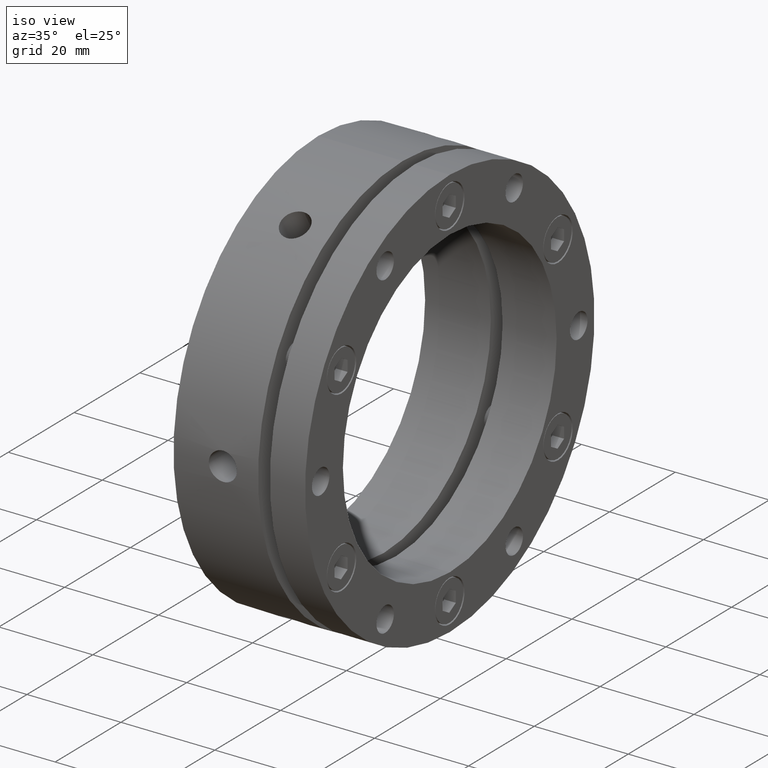
[diagram: clean part render]
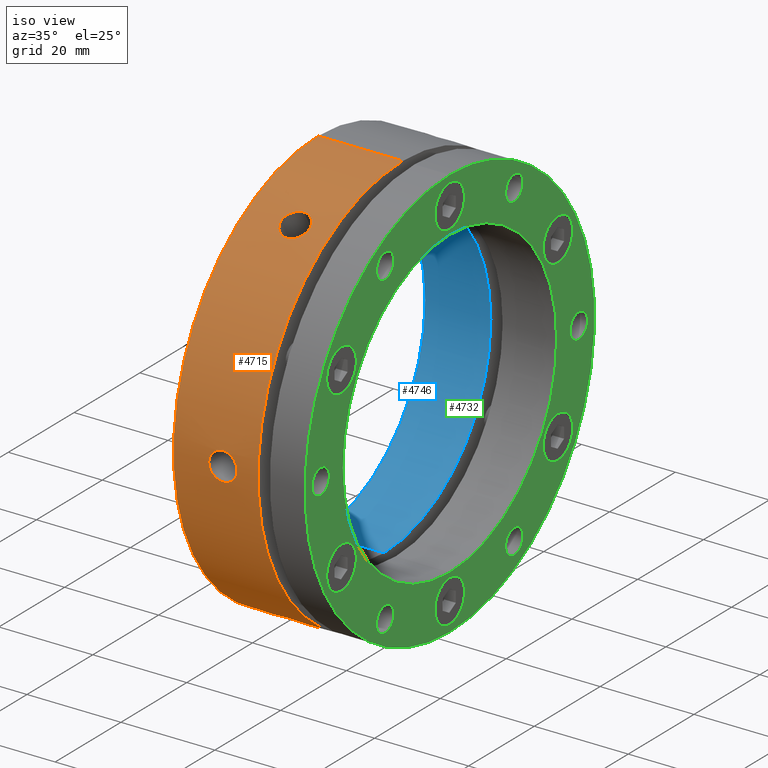
[diagram: same view with three faces highlighted in distinct colors, each labeled with its STEP entity id]
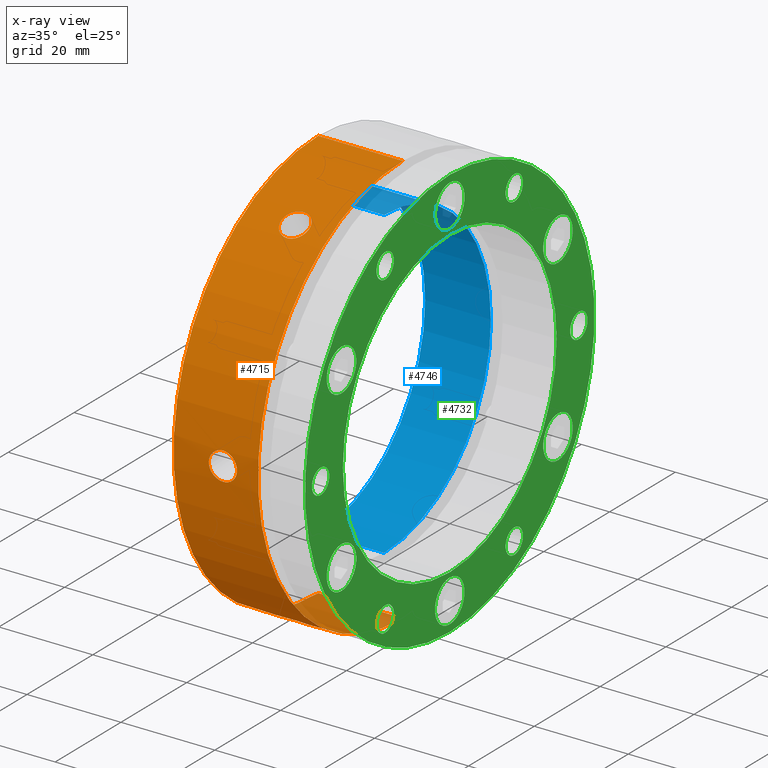
[diagram: x-ray of the same camera — body ghosted, the three highlighted faces saturated]
A machine part, iso view with three faces highlighted in distinct colors.
The next image is the same camera in x-ray (body ghosted, the three faces saturated) — at least one of them is partly hidden behind the body in this view.
Their STEP definitions:

[orange] entity #4715 — the highlighted cylindrical surface (partial cylindrical patch) has radius 44 mm, axis along (1, 0, 0).
#12 = CARTESIAN_POINT ( 'NONE',  ( 8.241765270477920100, -20.25900382798964800, 39.05882633052730300 ) ) ;
#13 = CARTESIAN_POINT ( 'NONE',  ( 8.518605668478109300, -20.01291649313067500, 39.18548613785174700 ) ) ;
#14 = CARTESIAN_POINT ( 'NONE',  ( 8.669661274635046800, -19.90215360396181400, 39.24176758601879600 ) ) ;
#15 = CARTESIAN_POINT ( 'NONE',  ( 8.997698449928226000, -19.70617450761658100, 39.34054813581234100 ) ) ;
#16 = CARTESIAN_POINT ( 'NONE',  ( 9.172241088617555600, -19.62275957601376300, 39.38213947928523600 ) ) ;
#17 = CARTESIAN_POINT ( 'NONE',  ( 9.533250649259940700, -19.48864777514099700, 39.44867819383064500 ) ) ;
#18 = CARTESIAN_POINT ( 'NONE',  ( 9.722386472922758900, -19.43693714134661800, 39.47413023464650900 ) ) ;
#19 = CARTESIAN_POINT ( 'NONE',  ( 10.10963134414471100, -19.36780511968019200, 39.50809547503627800 ) ) ;
#20 = CARTESIAN_POINT ( 'NONE',  ( 10.30430393243151800, -19.35072785629465700, 39.51644381054071400 ) ) ;
#21 = CARTESIAN_POINT ( 'NONE',  ( 10.49999999999999100, -19.35072785629465000, 39.51644381054071400 ) ) ;
#23 = DIRECTION ( 'NONE',  ( 1.000000000000000000, 0.0000000000000000000, 0.0000000000000000000 ) ) ;
#24 = CARTESIAN_POINT ( 'NONE',  ( 13.99999999999998800, 0.0000000000000000000, -44.00000000000000000 ) ) ;
#146 = CARTESIAN_POINT ( 'NONE',  ( 10.49999999999999100, -43.89760813529593300, -2.999999999999996900 ) ) ;
#159 = CARTESIAN_POINT ( 'NONE',  ( 10.49999999999999100, -24.54688027900128200, 36.51644381054072100 ) ) ;
#162 = CARTESIAN_POINT ( 'NONE',  ( 10.49999999999999100, -43.89760813529593300, 3.000000000000003100 ) ) ;
#178 = CARTESIAN_POINT ( 'NONE',  ( 10.49999999999999100, -19.35072785629465700, -39.51644381054072100 ) ) ;
#180 = CARTESIAN_POINT ( 'NONE',  ( -1.387778780781445700E-014, 5.388445916248353600E-015, 44.00000000000000000 ) ) ;
#181 = CARTESIAN_POINT ( 'NONE',  ( 10.49999999999999100, -19.35072785629465000, 39.51644381054071400 ) ) ;
#193 = CARTESIAN_POINT ( 'NONE',  ( 17.99999999999999300, 0.0000000000000000000, -44.00000000000000000 ) ) ;
#208 = CARTESIAN_POINT ( 'NONE',  ( -1.387778780781445700E-014, 0.0000000000000000000, -44.00000000000000000 ) ) ;
#215 = CARTESIAN_POINT ( 'NONE',  ( 10.49999999999999100, -24.54688027900128900, -36.51644381054072100 ) ) ;
#224 = CARTESIAN_POINT ( 'NONE',  ( 17.99999999999999300, 5.388445916248353600E-015, 44.00000000000000000 ) ) ;
#917 = CARTESIAN_POINT ( 'NONE',  ( 10.49999999999999100, -43.89760813529593300, 3.000000000000003100 ) ) ;
#918 = CARTESIAN_POINT ( 'NONE',  ( 17.99999999999999300, 0.0000000000000000000, 0.0000000000000000000 ) ) ;
#919 = DIRECTION ( 'NONE',  ( -1.000000000000000000, -0.0000000000000000000, -0.0000000000000000000 ) ) ;
#920 = DIRECTION ( 'NONE',  ( 0.0000000000000000000, 0.0000000000000000000, -1.000000000000000000 ) ) ;
#921 = CARTESIAN_POINT ( 'NONE',  ( 10.49999999999999100, -24.54688027900128900, -36.51644381054072100 ) ) ;
#922 = CARTESIAN_POINT ( 'NONE',  ( 10.69569606766441600, -24.54688027900129300, -36.51644381054070700 ) ) ;
#926 = CARTESIAN_POINT ( 'NONE',  ( 10.69569606766441800, -43.89760813529592600, 3.000000000000003100 ) ) ;
#927 = CARTESIAN_POINT ( 'NONE',  ( 10.89446792063006000, -24.53059367690323700, -36.52740686769526900 ) ) ;
#928 = CARTESIAN_POINT ( 'NONE',  ( 11.27917409489433700, -24.46671162549019100, -36.57022697297051600 ) ) ;
#929 = CARTESIAN_POINT ( 'NONE',  ( 11.46616220801009500, -24.41946861119954400, -36.60184735365913900 ) ) ;
#930 = CARTESIAN_POINT ( 'NONE',  ( 11.82934936234904400, -24.29397182231635500, -36.68526420854051700 ) ) ;
#931 = CARTESIAN_POINT ( 'NONE',  ( 12.00489986281481200, -24.21545574682701500, -36.73722278444835600 ) ) ;
#932 = CARTESIAN_POINT ( 'NONE',  ( 12.32982023942653900, -24.03349771181343900, -36.85651669212633400 ) ) ;
#933 = CARTESIAN_POINT ( 'NONE',  ( 12.48127881284401200, -23.92943182570235500, -36.92427309578756200 ) ) ;
#934 = CARTESIAN_POINT ( 'NONE',  ( 12.76132304751156000, -23.69366936277990700, -37.07599874960216400 ) ) ;
#935 = CARTESIAN_POINT ( 'NONE',  ( 12.88548133740307100, -23.56565242161002900, -37.15758936269588700 ) ) ;
#936 = CARTESIAN_POINT ( 'NONE',  ( 13.10264301832821900, -23.29047527537650800, -37.33068687755342600 ) ) ;
#937 = CARTESIAN_POINT ( 'NONE',  ( 13.19652586639104700, -23.14147931161435400, -37.42332134164033200 ) ) ;
#938 = CARTESIAN_POINT ( 'NONE',  ( 13.34701878578200500, -22.83147123179914600, -37.61325519495854100 ) ) ;
#939 = CARTESIAN_POINT ( 'NONE',  ( 13.40371633785312300, -22.67140192249565100, -37.71000520650560600 ) ) ;
#940 = CARTESIAN_POINT ( 'NONE',  ( 13.48039406310964900, -22.34101868219097800, -37.90667279052613000 ) ) ;
#941 = CARTESIAN_POINT ( 'NONE',  ( 13.50013823668368600, -22.16984045842354700, -38.00707121543884200 ) ) ;
#942 = CARTESIAN_POINT ( 'NONE',  ( 13.49986028854353200, -21.82651628484760700, -38.20526763673662900 ) ) ;
#943 = CARTESIAN_POINT ( 'NONE',  ( 13.48027260550921000, -21.65706259385068600, -38.30154561790860900 ) ) ;
#944 = CARTESIAN_POINT ( 'NONE',  ( 13.40378595821206900, -21.32246440611741900, -38.48882004640511700 ) ) ;
#945 = CARTESIAN_POINT ( 'NONE',  ( 13.34595197924581500, -21.15556195639233300, -38.58076184140694000 ) ) ;
#946 = CARTESIAN_POINT ( 'NONE',  ( 13.19513955927875600, -20.83634413796280100, -38.75409331823541900 ) ) ;
#947 = CARTESIAN_POINT ( 'NONE',  ( 13.10289034952953300, -20.68439058495692300, -38.83532642887190200 ) ) ;
#948 = CARTESIAN_POINT ( 'NONE',  ( 12.88499108210650900, -20.39596349800179800, -38.98757835126809100 ) ) ;
#949 = CARTESIAN_POINT ( 'NONE',  ( 12.75823284561367600, -20.25900194254587200, -39.05882730747435300 ) ) ;
#950 = CARTESIAN_POINT ( 'NONE',  ( 12.48139252829930100, -20.01291510103455100, -39.18548684783647200 ) ) ;
#951 = CARTESIAN_POINT ( 'NONE',  ( 12.33033699211587100, -19.90215243050545300, -39.24176818054445400 ) ) ;
#952 = CARTESIAN_POINT ( 'NONE',  ( 12.00230000657042400, -19.70617372344685600, -39.34054852800095100 ) ) ;
#953 = CARTESIAN_POINT ( 'NONE',  ( 11.82775754138803300, -19.62275898520577400, -39.38213977335754400 ) ) ;
#954 = CARTESIAN_POINT ( 'NONE',  ( 11.46674831666134300, -19.48864747285803700, -39.44867834285970100 ) ) ;
#955 = CARTESIAN_POINT ( 'NONE',  ( 11.27761266983701000, -19.43693694870408400, -39.47413032941874200 ) ) ;
#956 = CARTESIAN_POINT ( 'NONE',  ( 10.89036822370457200, -19.36780508213724500, -39.50809549335646400 ) ) ;
#957 = CARTESIAN_POINT ( 'NONE',  ( 10.69569585036848700, -19.35072785629466100, -39.51644381054071400 ) ) ;
#958 = CARTESIAN_POINT ( 'NONE',  ( 10.49999999999999100, -19.35072785629465700, -39.51644381054072100 ) ) ;
#959 = CARTESIAN_POINT ( 'NONE',  ( 10.69569606766441600, -19.35072785629465400, 39.51644381054072900 ) ) ;
#960 = CARTESIAN_POINT ( 'NONE',  ( 10.49999999999999100, -19.35072785629465000, 39.51644381054071400 ) ) ;
#961 = CARTESIAN_POINT ( 'NONE',  ( 10.89446792063005800, -43.89895912024589800, 2.980413860264485400 ) ) ;
#962 = CARTESIAN_POINT ( 'NONE',  ( 11.27917409489433400, -43.90410139350044700, 2.903680328257301400 ) ) ;
#963 = CARTESIAN_POINT ( 'NONE',  ( 11.46616220801008600, -43.90786393930881100, 2.846956487385941400 ) ) ;
#964 = CARTESIAN_POINT ( 'NONE',  ( 11.82934936234903700, -43.91735666029826700, 2.696564652679040600 ) ) ;
#965 = CARTESIAN_POINT ( 'NONE',  ( 12.00489986281480800, -43.92309606923426900, 2.602588448745886100 ) ) ;
#966 = CARTESIAN_POINT ( 'NONE',  ( 12.32982023942653300, -43.93542860629330700, 2.385361214162449200 ) ) ;
#967 = CARTESIAN_POINT ( 'NONE',  ( 12.48127881284401000, -43.94207443007746900, 2.261359311292297400 ) ) ;
#968 = CARTESIAN_POINT ( 'NONE',  ( 12.76132304751155500, -43.95559146922550300, 1.981320202235368200 ) ) ;
#969 = CARTESIAN_POINT ( 'NONE',  ( 12.88548133740306200, -43.96224254229007000, 1.829658972520620500 ) ) ;
#970 = CARTESIAN_POINT ( 'NONE',  ( 13.10264301832821600, -43.97456081437192700, 1.504799815912710300 ) ) ;
#971 = CARTESIAN_POINT ( 'NONE',  ( 13.19652586639104500, -43.98028663165605000, 1.329448294189896600 ) ) ;
#972 = CARTESIAN_POINT ( 'NONE',  ( 13.34701878578200200, -43.98977013376067200, 0.9660064950323881100 ) ) ;
#973 = CARTESIAN_POINT ( 'NONE',  ( 13.40371633785312300, -43.99352344692514500, 0.7790074010357930200 ) ) ;
#974 = CARTESIAN_POINT ( 'NONE',  ( 13.48039406310964800, -43.99865095063547200, 0.3945533299370778700 ) ) ;
#975 = CARTESIAN_POINT ( 'NONE',  ( 13.50013823668368400, -44.00000942522611800, 0.1961094271234160600 ) ) ;
#976 = CARTESIAN_POINT ( 'NONE',  ( 13.49986028854353400, -43.99999047422120700, -0.2003162395755351300 ) ) ;
#977 = CARTESIAN_POINT ( 'NONE',  ( 13.48027260550920800, -43.99864280624273500, -0.3952064313298995800 ) ) ;
#978 = CARTESIAN_POINT ( 'NONE',  ( 13.40378595821207200, -43.99352812493329900, -0.7786141762153879800 ) ) ;
#979 = CARTESIAN_POINT ( 'NONE',  ( 13.34595197924581100, -43.98970083021185200, -0.9691268351320843100 ) ) ;
#980 = CARTESIAN_POINT ( 'NONE',  ( 13.19513955927875200, -43.98020138320603700, -1.332243313646957100 ) ) ;
#981 = CARTESIAN_POINT ( 'NONE',  ( 13.10289034952953500, -43.97457454414273300, -1.504455506063588700 ) ) ;
#982 = CARTESIAN_POINT ( 'NONE',  ( 12.88499108210651100, -43.96221503323530300, -1.830366651704368200 ) ) ;
#983 = CARTESIAN_POINT ( 'NONE',  ( 12.75823284561367600, -43.95543766157509000, -1.984603316174164300 ) ) ;
#984 = CARTESIAN_POINT ( 'NONE',  ( 12.48139252829930400, -43.94208462040466400, -2.261050542641104900 ) ) ;
#985 = CARTESIAN_POINT ( 'NONE',  ( 12.33033699211587500, -43.93544434902408100, -2.385114495464300900 ) ) ;
#986 = CARTESIAN_POINT ( 'NONE',  ( 12.00230000657042800, -43.92300128578676100, -2.604227208106121500 ) ) ;
#987 = CARTESIAN_POINT ( 'NONE',  ( 11.82775754138803100, -43.91731299172004600, -2.697262113151216700 ) ) ;
#988 = CARTESIAN_POINT ( 'NONE',  ( 11.46674831666134700, -43.90788132706651900, -2.846675374535392300 ) ) ;
#989 = CARTESIAN_POINT ( 'NONE',  ( 11.27761266983701200, -43.90406813192647200, -2.904183995375238400 ) ) ;
#990 = CARTESIAN_POINT ( 'NONE',  ( 10.89036822370457000, -43.89891689345682800, -2.981036530002018300 ) ) ;
#991 = CARTESIAN_POINT ( 'NONE',  ( 10.69569585036849300, -43.89760813529594700, -2.999999999999997800 ) ) ;
#992 = CARTESIAN_POINT ( 'NONE',  ( 10.49999999999999100, -43.89760813529593300, -2.999999999999996900 ) ) ;
#995 = CARTESIAN_POINT ( 'NONE',  ( 10.89446792063006200, -19.36836544334266500, 39.50782072795976100 ) ) ;
#996 = CARTESIAN_POINT ( 'NONE',  ( 11.27917409489433900, -19.43738976801026700, 39.47390730122781100 ) ) ;
#997 = CARTESIAN_POINT ( 'NONE',  ( 11.46616220801009300, -19.48839532810927700, 39.44880384104508400 ) ) ;
#998 = CARTESIAN_POINT ( 'NONE',  ( 11.82934936234903700, -19.62338483798194500, 39.38182886121953900 ) ) ;
#999 = CARTESIAN_POINT ( 'NONE',  ( 12.00489986281480800, -19.70764032240726100, 39.33981123319424000 ) ) ;
#1000 = CARTESIAN_POINT ( 'NONE',  ( 12.32982023942653300, -19.90193089447988900, 39.24187790628878500 ) ) ;
#1001 = CARTESIAN_POINT ( 'NONE',  ( 12.48127881284401400, -20.01264260437513100, 39.18563240707983700 ) ) ;
#1002 = CARTESIAN_POINT ( 'NONE',  ( 12.76132304751155600, -20.26192210644560600, 39.05731895183753000 ) ) ;
#1003 = CARTESIAN_POINT ( 'NONE',  ( 12.88548133740307100, -20.39659012068005200, 38.98724833521650600 ) ) ;
#1004 = CARTESIAN_POINT ( 'NONE',  ( 13.10264301832821900, -20.68408553899540400, 38.83548669346613700 ) ) ;
#1005 = CARTESIAN_POINT ( 'NONE',  ( 13.19652586639104500, -20.83880732004168100, 38.75276963583021200 ) ) ;
#1006 = CARTESIAN_POINT ( 'NONE',  ( 13.34701878578200200, -21.15829890196152300, 38.57926168999090800 ) ) ;
#1007 = CARTESIAN_POINT ( 'NONE',  ( 13.40371633785312400, -21.32212152442948700, 38.48901260754139700 ) ) ;
#1008 = CARTESIAN_POINT ( 'NONE',  ( 13.48039406310964900, -21.65763226844448800, 38.30122612046319800 ) ) ;
#1009 = CARTESIAN_POINT ( 'NONE',  ( 13.50013823668368600, -21.83016896680257400, 38.20318064256226600 ) ) ;
#1010 = CARTESIAN_POINT ( 'NONE',  ( 13.49986028854353200, -22.17347418937358900, 38.00495139716110100 ) ) ;
#1011 = CARTESIAN_POINT ( 'NONE',  ( 13.48027260550921000, -22.34158021239206300, 37.90633918657870500 ) ) ;
#1012 = CARTESIAN_POINT ( 'NONE',  ( 13.40378595821207200, -22.67106371881587600, 37.71020587018971800 ) ) ;
#1013 = CARTESIAN_POINT ( 'NONE',  ( 13.34595197924581800, -22.83413887381953000, 37.61163500627483800 ) ) ;
#1014 = CARTESIAN_POINT ( 'NONE',  ( 13.19513955927875200, -23.14385724524324700, 37.42185000458845000 ) ) ;
#1015 = CARTESIAN_POINT ( 'NONE',  ( 13.10289034952953800, -23.29018395918581400, 37.33087092280830900 ) ) ;
#1016 = CARTESIAN_POINT ( 'NONE',  ( 12.88499108210651300, -23.56625153523349800, 37.15721169956373200 ) ) ;
#1017 = CARTESIAN_POINT ( 'NONE',  ( 12.75823284561367600, -23.69643571902921100, 37.07422399130020100 ) ) ;
#1018 = CARTESIAN_POINT ( 'NONE',  ( 12.48139252829930600, -23.92916951937012700, 36.92443630519537800 ) ) ;
#1019 = CARTESIAN_POINT ( 'NONE',  ( 12.33033699211587500, -24.03329191851863200, 36.85665368508016100 ) ) ;
#1020 = CARTESIAN_POINT ( 'NONE',  ( 12.00230000657042600, -24.21682756233990800, 36.73632131989482700 ) ) ;
#1021 = CARTESIAN_POINT ( 'NONE',  ( 11.82775754138803100, -24.29455400651427900, 36.68487766020633200 ) ) ;
#1022 = CARTESIAN_POINT ( 'NONE',  ( 11.46674831666134700, -24.41923385420850300, 36.60200296832431400 ) ) ;
#1023 = CARTESIAN_POINT ( 'NONE',  ( 11.27761266983701000, -24.46713118322237800, 36.56994633404350000 ) ) ;
#1024 = CARTESIAN_POINT ( 'NONE',  ( 10.89036822370457500, -24.53111181131957300, 36.52705896335445600 ) ) ;
#1025 = CARTESIAN_POINT ( 'NONE',  ( 10.69569585036848200, -24.54688027900128600, 36.51644381054072100 ) ) ;
#1026 = CARTESIAN_POINT ( 'NONE',  ( 10.49999999999999100, -24.54688027900128200, 36.51644381054072100 ) ) ;
#1038 = EDGE_LOOP ( 'NONE', ( #4260, #4261, #4262, #4263 ) ) ;
#1039 = EDGE_LOOP ( 'NONE', ( #4266, #4267 ) ) ;
#1051 = EDGE_LOOP ( 'NONE', ( #4264, #4265 ) ) ;
#1052 = EDGE_LOOP ( 'NONE', ( #4268, #4269 ) ) ;
#1154 = EDGE_CURVE ( 'NONE', #1591, #1794, #4275, .T. ) ;
#1159 = EDGE_CURVE ( 'NONE', #1586, #1748, #3084, .T. ) ;
#1164 = EDGE_CURVE ( 'NONE', #1495, #1515, #3087, .T. ) ;
#1167 = EDGE_CURVE ( 'NONE', #1512, #1598, #3088, .T. ) ;
#1169 = EDGE_CURVE ( 'NONE', #1719, #1649, #1203, .T. ) ;
#1178 = CARTESIAN_POINT ( 'NONE',  ( 8.115007037842215000, -20.39596565208401600, 38.98757722557098000 ) ) ;
#1179 = CARTESIAN_POINT ( 'NONE',  ( 7.897107902876449300, -20.68439323269151900, 38.83532501983518900 ) ) ;
#1203 = LINE ( 'NONE', #24, #1204 ) ;
#1204 = VECTOR ( 'NONE', #23, 1000.000000000000000 ) ;
#1495 = VERTEX_POINT ( 'NONE', #146 ) ;
#1512 = VERTEX_POINT ( 'NONE', #159 ) ;
#1515 = VERTEX_POINT ( 'NONE', #162 ) ;
#1582 = CIRCLE ( 'NONE', #3318, 44.00000000000000000 ) ;
#1585 = CIRCLE ( 'NONE', #3320, 44.00000000000000000 ) ;
#1586 = VERTEX_POINT ( 'NONE', #178 ) ;
#1591 = VERTEX_POINT ( 'NONE', #180 ) ;
#1598 = VERTEX_POINT ( 'NONE', #181 ) ;
#1649 = VERTEX_POINT ( 'NONE', #193 ) ;
#1719 = VERTEX_POINT ( 'NONE', #208 ) ;
#1748 = VERTEX_POINT ( 'NONE', #215 ) ;
#1794 = VERTEX_POINT ( 'NONE', #224 ) ;
#1880 = CARTESIAN_POINT ( 'NONE',  ( -1.387778780781445700E-014, 0.0000000000000000000, 0.0000000000000000000 ) ) ;
#1881 = DIRECTION ( 'NONE',  ( 1.000000000000000000, 0.0000000000000000000, 0.0000000000000000000 ) ) ;
#1882 = DIRECTION ( 'NONE',  ( 0.0000000000000000000, 0.0000000000000000000, -1.000000000000000000 ) ) ;
#2331 = DIRECTION ( 'NONE',  ( 0.0000000000000000000, 0.0000000000000000000, -1.000000000000000000 ) ) ;
#2332 = CARTESIAN_POINT ( 'NONE',  ( 13.99999999999998800, 0.0000000000000000000, 0.0000000000000000000 ) ) ;
#2333 = DIRECTION ( 'NONE',  ( 1.000000000000000000, 0.0000000000000000000, 0.0000000000000000000 ) ) ;
#2611 = FACE_OUTER_BOUND ( 'NONE', #1038, .T. ) ;
#2612 = FACE_BOUND ( 'NONE', #1052, .T. ) ;
#2614 = FACE_BOUND ( 'NONE', #1039, .T. ) ;
#2618 = FACE_BOUND ( 'NONE', #1051, .T. ) ;
#2622 = CYLINDRICAL_SURFACE ( 'NONE', #3442, 44.00000000000000000 ) ;
#3076 = B_SPLINE_CURVE_WITH_KNOTS ( 'NONE', 3,
 ( #917, #926, #961, #962, #963, #964, #965, #966, #967, #968, #969, #970, #971, #972, #973, #974, #975, #976, #977, #978, #979, #980, #981, #982, #983, #984, #985, #986, #987, #988, #989, #990, #991, #992 ),
 .UNSPECIFIED., .F., .F.,
 ( 4, 2, 2, 2, 2, 2, 2, 2, 2, 2, 2, 2, 2, 2, 2, 2, 4 ),
 ( 0.004692117637985918400, 0.005278373790075020400, 0.005864629942164122400, 0.006450886094253224400, 0.007037142246342326400, 0.007623398398431430200, 0.008209654550520532200, 0.008795910702609634200, 0.009382166854698737900, 0.009968423006787841700, 0.01055467915887694200, 0.01114093531096604400, 0.01172719146305514600, 0.01231344761514425000, 0.01289970376723335000, 0.01348595991932245200, 0.01407221607141155600 ),
 .UNSPECIFIED. ) ;
#3077 = B_SPLINE_CURVE_WITH_KNOTS ( 'NONE', 3,
 ( #960, #959, #995, #996, #997, #998, #999, #1000, #1001, #1002, #1003, #1004, #1005, #1006, #1007, #1008, #1009, #1010, #1011, #1012, #1013, #1014, #1015, #1016, #1017, #1018, #1019, #1020, #1021, #1022, #1023, #1024, #1025, #1026 ),
 .UNSPECIFIED., .F., .F.,
 ( 4, 2, 2, 2, 2, 2, 2, 2, 2, 2, 2, 2, 2, 2, 2, 2, 4 ),
 ( 0.004692117637985915000, 0.005278373790075017000, 0.005864629942164119000, 0.006450886094253221800, 0.007037142246342323800, 0.007623398398431425900, 0.008209654550520528700, 0.008795910702609630700, 0.009382166854698732700, 0.009968423006787834700, 0.01055467915887693700, 0.01114093531096603900, 0.01172719146305514100, 0.01231344761514424300, 0.01289970376723334700, 0.01348595991932244900, 0.01407221607141155100 ),
 .UNSPECIFIED. ) ;
#3084 = B_SPLINE_CURVE_WITH_KNOTS ( 'NONE', 3,
 ( #4438, #4433, #4434, #4439, #4440, #4441, #4442, #4443, #4444, #4445, #4446, #4447, #4448, #4449, #4450, #4451, #4452, #4453, #4454, #4455, #4456, #4457, #4458, #4459, #4460, #4461, #4462, #4463, #4464, #4465, #4466, #4467, #4468, #4469 ),
 .UNSPECIFIED., .F., .F.,
 ( 4, 2, 2, 2, 2, 2, 2, 2, 2, 2, 2, 2, 2, 2, 2, 2, 4 ),
 ( 0.01407221607141157300, 0.01465847222321322400, 0.01524472837501487600, 0.01583098452681652700, 0.01641724067861817900, 0.01700349683041983000, 0.01758975298222148100, 0.01817600913402313300, 0.01876226528582478800, 0.01934852143762643600, 0.01993477758942809000, 0.02052103374122974200, 0.02110728989303139300, 0.02169354604483304500, 0.02227980219663469600, 0.02286605834843634700, 0.02345231450023799900 ),
 .UNSPECIFIED. ) ;
#3087 = B_SPLINE_CURVE_WITH_KNOTS ( 'NONE', 3,
 ( #4484, #4482, #4480, #4485, #4486, #4487, #4488, #4489, #4490, #4491, #4492, #4493, #4494, #4495, #4496, #4497, #4498, #4499, #4500, #4501, #4502, #4503, #4504, #4505, #4506, #4507, #4508, #4509, #4510, #4511, #4512, #4513, #4514, #4515 ),
 .UNSPECIFIED., .F., .F.,
 ( 4, 2, 2, 2, 2, 2, 2, 2, 2, 2, 2, 2, 2, 2, 2, 2, 4 ),
 ( 0.01407221607141155600, 0.01465847222321320700, 0.01524472837501485700, 0.01583098452681650600, 0.01641724067861815800, 0.01700349683041980900, 0.01758975298222146100, 0.01817600913402311200, 0.01876226528582476000, 0.01934852143762641100, 0.01993477758942806300, 0.02052103374122971400, 0.02110728989303136500, 0.02169354604483301300, 0.02227980219663466500, 0.02286605834843631600, 0.02345231450023796400 ),
 .UNSPECIFIED. ) ;
#3088 = B_SPLINE_CURVE_WITH_KNOTS ( 'NONE', 3,
 ( #4520, #4519, #4517, #4521, #4522, #4523, #4524, #4525, #4526, #4527, #4528, #4529, #4530, #4531, #4532, #4533, #4534, #4535, #4536, #4537, #4293, #4292, #1179, #1178, #12, #13, #14, #15, #16, #17, #18, #19, #20, #21 ),
 .UNSPECIFIED., .F., .F.,
 ( 4, 2, 2, 2, 2, 2, 2, 2, 2, 2, 2, 2, 2, 2, 2, 2, 4 ),
 ( 0.01407221607141155100, 0.01465847222321320000, 0.01524472837501485000, 0.01583098452681649900, 0.01641724067861814700, 0.01700349683041979900, 0.01758975298222144700, 0.01817600913402309800, 0.01876226528582474600, 0.01934852143762639700, 0.01993477758942804900, 0.02052103374122969700, 0.02110728989303134800, 0.02169354604483299900, 0.02227980219663464700, 0.02286605834843630200, 0.02345231450023795000 ),
 .UNSPECIFIED. ) ;
#3093 = B_SPLINE_CURVE_WITH_KNOTS ( 'NONE', 3,
 ( #921, #922, #927, #928, #929, #930, #931, #932, #933, #934, #935, #936, #937, #938, #939, #940, #941, #942, #943, #944, #945, #946, #947, #948, #949, #950, #951, #952, #953, #954, #955, #956, #957, #958 ),
 .UNSPECIFIED., .F., .F.,
 ( 4, 2, 2, 2, 2, 2, 2, 2, 2, 2, 2, 2, 2, 2, 2, 2, 4 ),
 ( 0.004692117637985913200, 0.005278373790075017000, 0.005864629942164120700, 0.006450886094253224400, 0.007037142246342328200, 0.007623398398431431900, 0.008209654550520535700, 0.008795910702609639400, 0.009382166854698743100, 0.009968423006787846900, 0.01055467915887695100, 0.01114093531096605400, 0.01172719146305515800, 0.01231344761514426200, 0.01289970376723336600, 0.01348595991932246900, 0.01407221607141157300 ),
 .UNSPECIFIED. ) ;
#3318 = AXIS2_PLACEMENT_3D ( 'NONE', #918, #919, #920 ) ;
#3320 = AXIS2_PLACEMENT_3D ( 'NONE', #1880, #1881, #1882 ) ;
#3442 = AXIS2_PLACEMENT_3D ( 'NONE', #2332, #2333, #2331 ) ;
#3660 = EDGE_CURVE ( 'NONE', #1649, #1794, #1582, .T. ) ;
#3662 = EDGE_CURVE ( 'NONE', #1748, #1586, #3093, .T. ) ;
#3663 = EDGE_CURVE ( 'NONE', #1515, #1495, #3076, .T. ) ;
#3664 = EDGE_CURVE ( 'NONE', #1598, #1512, #3077, .T. ) ;
#3665 = EDGE_CURVE ( 'NONE', #1591, #1719, #1585, .T. ) ;
#4260 = ORIENTED_EDGE ( 'NONE', *, *, #1154, .F. ) ;
#4261 = ORIENTED_EDGE ( 'NONE', *, *, #3665, .T. ) ;
#4262 = ORIENTED_EDGE ( 'NONE', *, *, #1169, .T. ) ;
#4263 = ORIENTED_EDGE ( 'NONE', *, *, #3660, .T. ) ;
#4264 = ORIENTED_EDGE ( 'NONE', *, *, #1167, .T. ) ;
#4265 = ORIENTED_EDGE ( 'NONE', *, *, #3664, .T. ) ;
#4266 = ORIENTED_EDGE ( 'NONE', *, *, #1164, .T. ) ;
#4267 = ORIENTED_EDGE ( 'NONE', *, *, #3663, .T. ) ;
#4268 = ORIENTED_EDGE ( 'NONE', *, *, #1159, .T. ) ;
#4269 = ORIENTED_EDGE ( 'NONE', *, *, #3662, .T. ) ;
#4270 = VECTOR ( 'NONE', #4421, 1000.000000000000000 ) ;
#4275 = LINE ( 'NONE', #4423, #4270 ) ;
#4292 = CARTESIAN_POINT ( 'NONE',  ( 7.804858791457594000, -20.83634704647958500, 38.75409175598782200 ) ) ;
#4293 = CARTESIAN_POINT ( 'NONE',  ( 7.654046657101154100, -21.15556542519136600, 38.58075994084757100 ) ) ;
#4421 = DIRECTION ( 'NONE',  ( 1.000000000000000000, 0.0000000000000000000, 0.0000000000000000000 ) ) ;
#4423 = CARTESIAN_POINT ( 'NONE',  ( 13.99999999999998800, 5.388445916248353600E-015, 44.00000000000000000 ) ) ;
#4433 = CARTESIAN_POINT ( 'NONE',  ( 10.30430414972744800, -19.35072785629465700, -39.51644381054071400 ) ) ;
#4434 = CARTESIAN_POINT ( 'NONE',  ( 10.10553251876067000, -19.36836540365117500, -39.50782074733642400 ) ) ;
#4438 = CARTESIAN_POINT ( 'NONE',  ( 10.49999999999999100, -19.35072785629465700, -39.51644381054072100 ) ) ;
#4439 = CARTESIAN_POINT ( 'NONE',  ( 9.720826747784636600, -19.43738957767180900, -39.47390739487077100 ) ) ;
#4440 = CARTESIAN_POINT ( 'NONE',  ( 9.533838824820671600, -19.48839502717629600, -39.44880398939285700 ) ) ;
#4441 = CARTESIAN_POINT ( 'NONE',  ( 9.170652025531381900, -19.62338423918481900, -39.38182915927242800 ) ) ;
#4442 = CARTESIAN_POINT ( 'NONE',  ( 8.995101655011454900, -19.70763955038701100, -39.33981161932420900 ) ) ;
#4443 = CARTESIAN_POINT ( 'NONE',  ( 8.670181491231526000, -19.90192972402596900, -39.24187849927452700 ) ) ;
#4444 = CARTESIAN_POINT ( 'NONE',  ( 8.518723000802239700, -20.01264120632973600, -39.18563312000992500 ) ) ;
#4445 = CARTESIAN_POINT ( 'NONE',  ( 8.238678871939081100, -20.26192018150265300, -39.05731994937339400 ) ) ;
#4446 = CARTESIAN_POINT ( 'NONE',  ( 8.114520524537100600, -20.39658798833345400, -38.98724944951450800 ) ) ;
#4447 = CARTESIAN_POINT ( 'NONE',  ( 7.897358738293631200, -20.68408288081543800, -38.83548810796712300 ) ) ;
#4448 = CARTESIAN_POINT ( 'NONE',  ( 7.803475804273041700, -20.83880435822705800, -38.75277122722933100 ) ) ;
#4449 = CARTESIAN_POINT ( 'NONE',  ( 7.652982552750157400, -21.15829547536185400, -38.57926356798064700 ) ) ;
#4450 = CARTESIAN_POINT ( 'NONE',  ( 7.596284802212410100, -21.32211785919907900, -38.48901463652803300 ) ) ;
#4451 = CARTESIAN_POINT ( 'NONE',  ( 7.519606585581882100, -21.65762810682742400, -38.30122847218877500 ) ) ;
#4452 = CARTESIAN_POINT ( 'NONE',  ( 7.499862108268171600, -21.83016414043802200, -38.20318340190723200 ) ) ;
#4453 = CARTESIAN_POINT ( 'NONE',  ( 7.500139359110090900, -22.17346987102919400, -38.00495391809845100 ) ) ;
#4454 = CARTESIAN_POINT ( 'NONE',  ( 7.519726753447969300, -22.34157613710872800, -37.90634158983348800 ) ) ;
#4455 = CARTESIAN_POINT ( 'NONE',  ( 7.596212900117786900, -22.67106011463008700, -37.71020803833089000 ) ) ;
#4456 = CARTESIAN_POINT ( 'NONE',  ( 7.654046657101151400, -22.83413549348733800, -37.61163706006325200 ) ) ;
#4457 = CARTESIAN_POINT ( 'NONE',  ( 7.804858791457591300, -23.14385443803874800, -37.42185174231408200 ) ) ;
#4458 = CARTESIAN_POINT ( 'NONE',  ( 7.897107902876443900, -23.29018141505693200, -37.33087251129537500 ) ) ;
#4459 = CARTESIAN_POINT ( 'NONE',  ( 8.115007037842218600, -23.56624948331008800, -37.15721300220508300 ) ) ;
#4460 = CARTESIAN_POINT ( 'NONE',  ( 8.241765270477916500, -23.69643393024635400, -37.07422513566887500 ) ) ;
#4461 = CARTESIAN_POINT ( 'NONE',  ( 8.518605668478109300, -23.92916820845724900, -36.92443715579359800 ) ) ;
#4462 = CARTESIAN_POINT ( 'NONE',  ( 8.669661274635045000, -24.03329081691613600, -36.85665440406033600 ) ) ;
#4463 = CARTESIAN_POINT ( 'NONE',  ( 8.997698449928222400, -24.21682683060974400, -36.73632180291142600 ) ) ;
#4464 = CARTESIAN_POINT ( 'NONE',  ( 9.172241088617555600, -24.29455345643620500, -36.68487802482489000 ) ) ;
#4465 = CARTESIAN_POINT ( 'NONE',  ( 9.533250649259938900, -24.41923357400406000, -36.60200315559448100 ) ) ;
#4466 = CARTESIAN_POINT ( 'NONE',  ( 9.722386472922758900, -24.46713100482596200, -36.56994645349071500 ) ) ;
#4467 = CARTESIAN_POINT ( 'NONE',  ( 10.10963134414471100, -24.53111177668236600, -36.52705898670750200 ) ) ;
#4468 = CARTESIAN_POINT ( 'NONE',  ( 10.30430393243151800, -24.54688027900129300, -36.51644381054070700 ) ) ;
#4469 = CARTESIAN_POINT ( 'NONE',  ( 10.49999999999999100, -24.54688027900128900, -36.51644381054072100 ) ) ;
#4480 = CARTESIAN_POINT ( 'NONE',  ( 10.10553251876066700, -43.89895911718083700, -2.980413904326657500 ) ) ;
#4482 = CARTESIAN_POINT ( 'NONE',  ( 10.30430414972744500, -43.89760813529593300, -2.999999999999997300 ) ) ;
#4484 = CARTESIAN_POINT ( 'NONE',  ( 10.49999999999999100, -43.89760813529593300, -2.999999999999996900 ) ) ;
#4485 = CARTESIAN_POINT ( 'NONE',  ( 9.720826747784633100, -43.90410137942839700, -2.903680539916728300 ) ) ;
#4486 = CARTESIAN_POINT ( 'NONE',  ( 9.533838824820671600, -43.90786391731526800, -2.846956822175437100 ) ) ;
#4487 = CARTESIAN_POINT ( 'NONE',  ( 9.170652025531376600, -43.91735661902109200, -2.696565320278993200 ) ) ;
#4488 = CARTESIAN_POINT ( 'NONE',  ( 8.995101655011447800, -43.92309601762249800, -2.602589310400021300 ) ) ;
#4489 = CARTESIAN_POINT ( 'NONE',  ( 8.670181491231524300, -43.93542853460709100, -2.385362524298152200 ) ) ;
#4490 = CARTESIAN_POINT ( 'NONE',  ( 8.518723000802232500, -43.94207434847033500, -2.261360878500153300 ) ) ;
#4491 = CARTESIAN_POINT ( 'NONE',  ( 8.238678871939074000, -43.95559137064544300, -1.981322368052801600 ) ) ;
#4492 = CARTESIAN_POINT ( 'NONE',  ( 8.114520524537095300, -43.96224244112716000, -1.829661376335944800 ) ) ;
#4493 = CARTESIAN_POINT ( 'NONE',  ( 7.897358738293624100, -43.97456071027570300, -1.504802825214576600 ) ) ;
#4494 = CARTESIAN_POINT ( 'NONE',  ( 7.803475804273039000, -43.98028652894078800, -1.329451654896156600 ) ) ;
#4495 = CARTESIAN_POINT ( 'NONE',  ( 7.652982552750157400, -43.98977004684763200, -0.9660104015496149300 ) ) ;
#4496 = CARTESIAN_POINT ( 'NONE',  ( 7.596284802212406500, -43.99352337146389400, -0.7790115897117477800 ) ) ;
#4497 = CARTESIAN_POINT ( 'NONE',  ( 7.519606585581883000, -43.99865090648103200, -0.3945581098659476900 ) ) ;
#4498 = CARTESIAN_POINT ( 'NONE',  ( 7.499862108268169800, -44.00000940170670600, -0.1961149865501963200 ) ) ;
#4499 = CARTESIAN_POINT ( 'NONE',  ( 7.500139359110091800, -43.99999049824480600, 0.2003112393109202400 ) ) ;
#4500 = CARTESIAN_POINT ( 'NONE',  ( 7.519726753447971900, -43.99864284988078800, 0.3952017004036186800 ) ) ;
#4501 = CARTESIAN_POINT ( 'NONE',  ( 7.596212900117786900, -43.99352820050572200, 0.7786099708283663600 ) ) ;
#4502 = CARTESIAN_POINT ( 'NONE',  ( 7.654046657101156700, -43.98970091867871400, 0.9691228807843348400 ) ) ;
#4503 = CARTESIAN_POINT ( 'NONE',  ( 7.804858791457595800, -43.98020148451833200, 1.332240013673745800 ) ) ;
#4504 = CARTESIAN_POINT ( 'NONE',  ( 7.897107902876451000, -43.97457464774845400, 1.504452508539817700 ) ) ;
#4505 = CARTESIAN_POINT ( 'NONE',  ( 8.115007037842220300, -43.96221513539410400, 1.830364223365896300 ) ) ;
#4506 = CARTESIAN_POINT ( 'NONE',  ( 8.241765270477923600, -43.95543775823599500, 1.984601194858437000 ) ) ;
#4507 = CARTESIAN_POINT ( 'NONE',  ( 8.518605668478118200, -43.94208470158790900, 2.261048982058135000 ) ) ;
#4508 = CARTESIAN_POINT ( 'NONE',  ( 8.669661274635046800, -43.93544442087794300, 2.385113181958460300 ) ) ;
#4509 = CARTESIAN_POINT ( 'NONE',  ( 8.997698449928226000, -43.92300133822632800, 2.604226332900916300 ) ) ;
#4510 = CARTESIAN_POINT ( 'NONE',  ( 9.172241088617557400, -43.91731303244995400, 2.697261454460345500 ) ) ;
#4511 = CARTESIAN_POINT ( 'NONE',  ( 9.533250649259938900, -43.90788134914503600, 2.846675038236133200 ) ) ;
#4512 = CARTESIAN_POINT ( 'NONE',  ( 9.722386472922760700, -43.90406814617257000, 2.904183781155802900 ) ) ;
#4513 = CARTESIAN_POINT ( 'NONE',  ( 10.10963134414471500, -43.89891689636255000, 2.981036488328790800 ) ) ;
#4514 = CARTESIAN_POINT ( 'NONE',  ( 10.30430393243151800, -43.89760813529591800, 3.000000000000003600 ) ) ;
#4515 = CARTESIAN_POINT ( 'NONE',  ( 10.49999999999999100, -43.89760813529593300, 3.000000000000003100 ) ) ;
#4517 = CARTESIAN_POINT ( 'NONE',  ( 10.10553251876066700, -24.53059371352967600, 36.52740684300977100 ) ) ;
#4519 = CARTESIAN_POINT ( 'NONE',  ( 10.30430414972744800, -24.54688027900128900, 36.51644381054072100 ) ) ;
#4520 = CARTESIAN_POINT ( 'NONE',  ( 10.49999999999999100, -24.54688027900128200, 36.51644381054072100 ) ) ;
#4521 = CARTESIAN_POINT ( 'NONE',  ( 9.720826747784629500, -24.46671180175661300, 36.57022685495403600 ) ) ;
#4522 = CARTESIAN_POINT ( 'NONE',  ( 9.533838824820669800, -24.41946889013896900, 36.60184716721740700 ) ) ;
#4523 = CARTESIAN_POINT ( 'NONE',  ( 9.170652025531380100, -24.29397237983627300, 36.68526383899342100 ) ) ;
#4524 = CARTESIAN_POINT ( 'NONE',  ( 8.995101655011446000, -24.21545646723549400, 36.73722230892416700 ) ) ;
#4525 = CARTESIAN_POINT ( 'NONE',  ( 8.670181491231524300, -24.03349881058112900, 36.85651597497638200 ) ) ;
#4526 = CARTESIAN_POINT ( 'NONE',  ( 8.518723000802234300, -23.92943314214060600, 36.92427224150977600 ) ) ;
#4527 = CARTESIAN_POINT ( 'NONE',  ( 8.238678871939072200, -23.69367118914278700, 37.07599758132059300 ) ) ;
#4528 = CARTESIAN_POINT ( 'NONE',  ( 8.114520524537095300, -23.56565445279371200, 37.15758807317856600 ) ) ;
#4529 = CARTESIAN_POINT ( 'NONE',  ( 7.897358738293618800, -23.29047782946026900, 37.33068528275253300 ) ) ;
#4530 = CARTESIAN_POINT ( 'NONE',  ( 7.803475804273040800, -23.14148217071373300, 37.42331957233317800 ) ) ;
#4531 = CARTESIAN_POINT ( 'NONE',  ( 7.652982552750157400, -22.83147457148580600, 37.61325316643102200 ) ) ;
#4532 = CARTESIAN_POINT ( 'NONE',  ( 7.596284802212407400, -22.67140551226483000, 37.71000304681627600 ) ) ;
#4533 = CARTESIAN_POINT ( 'NONE',  ( 7.519606585581883000, -22.34102279965359400, 37.90667036232281400 ) ) ;
#4534 = CARTESIAN_POINT ( 'NONE',  ( 7.499862108268169800, -22.16984526126865900, 38.00706841535702600 ) ) ;
#4535 = CARTESIAN_POINT ( 'NONE',  ( 7.500139359110089100, -21.82652062721560100, 38.20526515740935700 ) ) ;
#4536 = CARTESIAN_POINT ( 'NONE',  ( 7.519726753447971900, -21.65706671277206000, 38.30154329023712700 ) ) ;
#4537 = CARTESIAN_POINT ( 'NONE',  ( 7.596212900117792300, -21.32246808587564900, 38.48881800915926000 ) ) ;
#4715 = ADVANCED_FACE ( 'NONE', ( #2611, #2618, #2614, #2612 ), #2622, .T. ) ;

[blue] entity #4746 — the highlighted cylindrical surface (partial cylindrical patch) has radius 32.5 mm, axis along (1, 0, 0).
#158 = CARTESIAN_POINT ( 'NONE',  ( -8.673617379884035500E-015, 3.980102097228898600E-015, 32.50000000000000000 ) ) ;
#169 = CARTESIAN_POINT ( 'NONE',  ( 14.00000000000001100, 3.980102097228898600E-015, 32.50000000000000000 ) ) ;
#177 = CARTESIAN_POINT ( 'NONE',  ( -8.673617379884035500E-015, 0.0000000000000000000, -32.50000000000000000 ) ) ;
#229 = CARTESIAN_POINT ( 'NONE',  ( 14.00000000000001100, 0.0000000000000000000, -32.50000000000000000 ) ) ;
#507 = CARTESIAN_POINT ( 'NONE',  ( 13.99999999999999300, 0.0000000000000000000, -32.50000000000000000 ) ) ;
#513 = DIRECTION ( 'NONE',  ( 1.000000000000000000, 0.0000000000000000000, 0.0000000000000000000 ) ) ;
#553 = CARTESIAN_POINT ( 'NONE',  ( 13.99999999999999300, 3.980102097228898600E-015, 32.50000000000000000 ) ) ;
#558 = DIRECTION ( 'NONE',  ( 1.000000000000000000, 0.0000000000000000000, 0.0000000000000000000 ) ) ;
#792 = CARTESIAN_POINT ( 'NONE',  ( 14.00000000000001100, 0.0000000000000000000, 0.0000000000000000000 ) ) ;
#794 = DIRECTION ( 'NONE',  ( -1.000000000000000000, -0.0000000000000000000, -0.0000000000000000000 ) ) ;
#796 = DIRECTION ( 'NONE',  ( 0.0000000000000000000, 0.0000000000000000000, -1.000000000000000000 ) ) ;
#914 = CARTESIAN_POINT ( 'NONE',  ( -8.673617379884035500E-015, 0.0000000000000000000, 0.0000000000000000000 ) ) ;
#915 = DIRECTION ( 'NONE',  ( 1.000000000000000000, 0.0000000000000000000, 0.0000000000000000000 ) ) ;
#916 = DIRECTION ( 'NONE',  ( 0.0000000000000000000, 0.0000000000000000000, -1.000000000000000000 ) ) ;
#1033 = EDGE_LOOP ( 'NONE', ( #4200, #4201, #4202, #4203 ) ) ;
#1340 = LINE ( 'NONE', #507, #1344 ) ;
#1344 = VECTOR ( 'NONE', #513, 1000.000000000000000 ) ;
#1377 = LINE ( 'NONE', #553, #1381 ) ;
#1381 = VECTOR ( 'NONE', #558, 1000.000000000000000 ) ;
#1511 = VERTEX_POINT ( 'NONE', #158 ) ;
#1539 = VERTEX_POINT ( 'NONE', #169 ) ;
#1542 = CIRCLE ( 'NONE', #3285, 32.50000000000000000 ) ;
#1578 = VERTEX_POINT ( 'NONE', #177 ) ;
#1581 = CIRCLE ( 'NONE', #3317, 32.50000000000000000 ) ;
#1812 = VERTEX_POINT ( 'NONE', #229 ) ;
#2429 = DIRECTION ( 'NONE',  ( 0.0000000000000000000, 0.0000000000000000000, -1.000000000000000000 ) ) ;
#2431 = DIRECTION ( 'NONE',  ( 1.000000000000000000, 0.0000000000000000000, 0.0000000000000000000 ) ) ;
#2433 = CARTESIAN_POINT ( 'NONE',  ( 13.99999999999999300, 0.0000000000000000000, 0.0000000000000000000 ) ) ;
#2687 = FACE_OUTER_BOUND ( 'NONE', #1033, .T. ) ;
#2701 = CYLINDRICAL_SURFACE ( 'NONE', #2938, 32.50000000000000000 ) ;
#2938 = AXIS2_PLACEMENT_3D ( 'NONE', #2433, #2431, #2429 ) ;
#3156 = EDGE_CURVE ( 'NONE', #1578, #1812, #1340, .T. ) ;
#3177 = EDGE_CURVE ( 'NONE', #1511, #1539, #1377, .T. ) ;
#3285 = AXIS2_PLACEMENT_3D ( 'NONE', #792, #794, #796 ) ;
#3317 = AXIS2_PLACEMENT_3D ( 'NONE', #914, #915, #916 ) ;
#3627 = EDGE_CURVE ( 'NONE', #1539, #1812, #1542, .T. ) ;
#3659 = EDGE_CURVE ( 'NONE', #1578, #1511, #1581, .T. ) ;
#4200 = ORIENTED_EDGE ( 'NONE', *, *, #3177, .F. ) ;
#4201 = ORIENTED_EDGE ( 'NONE', *, *, #3659, .F. ) ;
#4202 = ORIENTED_EDGE ( 'NONE', *, *, #3156, .T. ) ;
#4203 = ORIENTED_EDGE ( 'NONE', *, *, #3627, .F. ) ;
#4746 = ADVANCED_FACE ( 'NONE', ( #2687 ), #2701, .F. ) ;

[green] entity #4732 — the highlighted planar face has unit normal (1, 0, 0).
#235 = CARTESIAN_POINT ( 'NONE',  ( 27.99999999999998900, -19.62499999999998600, -33.99149709853923400 ) ) ;
#236 = DIRECTION ( 'NONE',  ( -1.000000000000000000, -0.0000000000000000000, -0.0000000000000000000 ) ) ;
#237 = DIRECTION ( 'NONE',  ( 0.0000000000000000000, 0.0000000000000000000, -1.000000000000000000 ) ) ;
#239 = CARTESIAN_POINT ( 'NONE',  ( 27.99999999999998900, 19.62500000000000700, 33.99149709853922000 ) ) ;
#240 = DIRECTION ( 'NONE',  ( -1.000000000000000000, -0.0000000000000000000, -0.0000000000000000000 ) ) ;
#241 = DIRECTION ( 'NONE',  ( 0.0000000000000000000, 0.0000000000000000000, -1.000000000000000000 ) ) ;
#243 = CARTESIAN_POINT ( 'NONE',  ( 27.99999999999998900, 0.0000000000000000000, 0.0000000000000000000 ) ) ;
#244 = DIRECTION ( 'NONE',  ( -1.000000000000000000, -0.0000000000000000000, -0.0000000000000000000 ) ) ;
#245 = DIRECTION ( 'NONE',  ( 0.0000000000000000000, 0.0000000000000000000, -1.000000000000000000 ) ) ;
#247 = CARTESIAN_POINT ( 'NONE',  ( 27.99999999999998900, 19.62500000000002500, -33.99149709853922000 ) ) ;
#248 = DIRECTION ( 'NONE',  ( -1.000000000000000000, -0.0000000000000000000, -0.0000000000000000000 ) ) ;
#249 = DIRECTION ( 'NONE',  ( 0.0000000000000000000, 0.0000000000000000000, -1.000000000000000000 ) ) ;
#253 = CARTESIAN_POINT ( 'NONE',  ( 27.99999999999998900, -19.62500000000002800, 33.99149709853921300 ) ) ;
#254 = DIRECTION ( 'NONE',  ( -1.000000000000000000, -0.0000000000000000000, -0.0000000000000000000 ) ) ;
#255 = DIRECTION ( 'NONE',  ( 0.0000000000000000000, 0.0000000000000000000, -1.000000000000000000 ) ) ;
#257 = CARTESIAN_POINT ( 'NONE',  ( 27.99999999999998900, -39.25000000000000700, -2.442491000000000100E-014 ) ) ;
#258 = DIRECTION ( 'NONE',  ( -1.000000000000000000, -0.0000000000000000000, -0.0000000000000000000 ) ) ;
#259 = DIRECTION ( 'NONE',  ( 0.0000000000000000000, 0.0000000000000000000, -1.000000000000000000 ) ) ;
#273 = CARTESIAN_POINT ( 'NONE',  ( 27.99999999999998900, 39.25000000000001400, 8.881783999999999800E-015 ) ) ;
#274 = DIRECTION ( 'NONE',  ( -1.000000000000000000, -0.0000000000000000000, -0.0000000000000000000 ) ) ;
#275 = DIRECTION ( 'NONE',  ( 0.0000000000000000000, 0.0000000000000000000, -1.000000000000000000 ) ) ;
#281 = CARTESIAN_POINT ( 'NONE',  ( 27.99999999999998900, 19.62500000000000700, 33.99149709853922000 ) ) ;
#282 = DIRECTION ( 'NONE',  ( -1.000000000000000000, -0.0000000000000000000, -0.0000000000000000000 ) ) ;
#283 = DIRECTION ( 'NONE',  ( 0.0000000000000000000, 0.0000000000000000000, -1.000000000000000000 ) ) ;
#287 = CARTESIAN_POINT ( 'NONE',  ( 27.99999999999998900, 32.90896534380868800, -19.00000000000003200 ) ) ;
#288 = DIRECTION ( 'NONE',  ( -1.000000000000000000, -0.0000000000000000000, -0.0000000000000000000 ) ) ;
#289 = DIRECTION ( 'NONE',  ( 0.0000000000000000000, 0.0000000000000000000, -1.000000000000000000 ) ) ;
#409 = CARTESIAN_POINT ( 'NONE',  ( 27.99999999999998900, -19.62500000000002800, 33.99149709853921300 ) ) ;
#410 = DIRECTION ( 'NONE',  ( -1.000000000000000000, -0.0000000000000000000, -0.0000000000000000000 ) ) ;
#411 = DIRECTION ( 'NONE',  ( 0.0000000000000000000, 0.0000000000000000000, -1.000000000000000000 ) ) ;
#414 = CARTESIAN_POINT ( 'NONE',  ( 27.99999999999999300, 0.0000000000000000000, 0.0000000000000000000 ) ) ;
#415 = DIRECTION ( 'NONE',  ( -1.000000000000000000, -0.0000000000000000000, -0.0000000000000000000 ) ) ;
#416 = DIRECTION ( 'NONE',  ( 0.0000000000000000000, 0.0000000000000000000, -1.000000000000000000 ) ) ;
#432 = CARTESIAN_POINT ( 'NONE',  ( 27.99999999999998900, -39.25000000000000700, -2.442491000000000100E-014 ) ) ;
#433 = DIRECTION ( 'NONE',  ( -1.000000000000000000, -0.0000000000000000000, -0.0000000000000000000 ) ) ;
#434 = DIRECTION ( 'NONE',  ( 0.0000000000000000000, 0.0000000000000000000, -1.000000000000000000 ) ) ;
#446 = CARTESIAN_POINT ( 'NONE',  ( 27.99999999999998900, -19.62499999999998600, -33.99149709853923400 ) ) ;
#447 = DIRECTION ( 'NONE',  ( -1.000000000000000000, -0.0000000000000000000, -0.0000000000000000000 ) ) ;
#448 = DIRECTION ( 'NONE',  ( 0.0000000000000000000, 0.0000000000000000000, -1.000000000000000000 ) ) ;
#458 = CARTESIAN_POINT ( 'NONE',  ( 27.99999999999998900, 19.62500000000002500, -33.99149709853922000 ) ) ;
#459 = DIRECTION ( 'NONE',  ( -1.000000000000000000, -0.0000000000000000000, -0.0000000000000000000 ) ) ;
#460 = DIRECTION ( 'NONE',  ( 0.0000000000000000000, 0.0000000000000000000, -1.000000000000000000 ) ) ;
#469 = CARTESIAN_POINT ( 'NONE',  ( 27.99999999999998900, -32.90896534380869600, 19.00000000000001800 ) ) ;
#470 = DIRECTION ( 'NONE',  ( -1.000000000000000000, -0.0000000000000000000, -0.0000000000000000000 ) ) ;
#471 = DIRECTION ( 'NONE',  ( 0.0000000000000000000, 0.0000000000000000000, -1.000000000000000000 ) ) ;
#474 = CARTESIAN_POINT ( 'NONE',  ( 27.99999999999998900, 39.25000000000001400, 8.881783999999999800E-015 ) ) ;
#475 = DIRECTION ( 'NONE',  ( -1.000000000000000000, -0.0000000000000000000, -0.0000000000000000000 ) ) ;
#476 = DIRECTION ( 'NONE',  ( 0.0000000000000000000, 0.0000000000000000000, -1.000000000000000000 ) ) ;
#730 = CARTESIAN_POINT ( 'NONE',  ( 27.99999999999998900, 0.0000000000000000000, 0.0000000000000000000 ) ) ;
#731 = DIRECTION ( 'NONE',  ( -1.000000000000000000, -0.0000000000000000000, -0.0000000000000000000 ) ) ;
#732 = DIRECTION ( 'NONE',  ( 0.0000000000000000000, 0.0000000000000000000, -1.000000000000000000 ) ) ;
#784 = VERTEX_POINT ( 'NONE', #4337 ) ;
#786 = VERTEX_POINT ( 'NONE', #4334 ) ;
#791 = VERTEX_POINT ( 'NONE', #4333 ) ;
#793 = VERTEX_POINT ( 'NONE', #4332 ) ;
#798 = VERTEX_POINT ( 'NONE', #4336 ) ;
#800 = VERTEX_POINT ( 'NONE', #4335 ) ;
#805 = VERTEX_POINT ( 'NONE', #4321 ) ;
#806 = VERTEX_POINT ( 'NONE', #4307 ) ;
#812 = VERTEX_POINT ( 'NONE', #4314 ) ;
#814 = VERTEX_POINT ( 'NONE', #4327 ) ;
#819 = VERTEX_POINT ( 'NONE', #4323 ) ;
#821 = VERTEX_POINT ( 'NONE', #4325 ) ;
#826 = VERTEX_POINT ( 'NONE', #4309 ) ;
#827 = VERTEX_POINT ( 'NONE', #4319 ) ;
#836 = VERTEX_POINT ( 'NONE', #4317 ) ;
#838 = VERTEX_POINT ( 'NONE', #4313 ) ;
#1027 = EDGE_CURVE ( 'NONE', #821, #819, #1035, .T. ) ;
#1035 = CIRCLE ( 'NONE', #3666, 4.500000000000000900 ) ;
#1113 = VERTEX_POINT ( 'NONE', #4347 ) ;
#1114 = VERTEX_POINT ( 'NONE', #4340 ) ;
#1119 = VERTEX_POINT ( 'NONE', #4351 ) ;
#1120 = VERTEX_POINT ( 'NONE', #4352 ) ;
#1124 = VERTEX_POINT ( 'NONE', #4356 ) ;
#1125 = VERTEX_POINT ( 'NONE', #4357 ) ;
#1130 = VERTEX_POINT ( 'NONE', #4362 ) ;
#1133 = VERTEX_POINT ( 'NONE', #4365 ) ;
#1134 = VERTEX_POINT ( 'NONE', #4366 ) ;
#1136 = VERTEX_POINT ( 'NONE', #4368 ) ;
#1145 = VERTEX_POINT ( 'NONE', #4377 ) ;
#1147 = VERTEX_POINT ( 'NONE', #4379 ) ;
#1151 = EDGE_CURVE ( 'NONE', #836, #838, #4276, .T. ) ;
#1209 = CIRCLE ( 'NONE', #3681, 2.649999999999999500 ) ;
#1211 = CIRCLE ( 'NONE', #3678, 2.649999999999999500 ) ;
#1213 = CIRCLE ( 'NONE', #3680, 44.00000000000000000 ) ;
#1215 = CIRCLE ( 'NONE', #3679, 2.649999999999999500 ) ;
#1219 = CIRCLE ( 'NONE', #3683, 2.649999999999999500 ) ;
#1220 = CIRCLE ( 'NONE', #3684, 2.649999999999999900 ) ;
#1226 = CIRCLE ( 'NONE', #3689, 2.649999999999999900 ) ;
#1229 = CIRCLE ( 'NONE', #3691, 2.649999999999999500 ) ;
#1232 = CIRCLE ( 'NONE', #3692, 4.500000000000000900 ) ;
#1277 = CIRCLE ( 'NONE', #3697, 2.649999999999999500 ) ;
#1281 = CIRCLE ( 'NONE', #3698, 32.50000000000000000 ) ;
#1291 = CIRCLE ( 'NONE', #3702, 2.649999999999999900 ) ;
#1298 = CIRCLE ( 'NONE', #3704, 2.649999999999999500 ) ;
#1305 = CIRCLE ( 'NONE', #3706, 2.649999999999999500 ) ;
#1315 = CIRCLE ( 'NONE', #3221, 4.500000000000000900 ) ;
#1316 = CIRCLE ( 'NONE', #3222, 2.649999999999999900 ) ;
#1482 = CIRCLE ( 'NONE', #3267, 44.00000000000000000 ) ;
#1587 = CIRCLE ( 'NONE', #3322, 4.500000000000000900 ) ;
#1590 = CIRCLE ( 'NONE', #3325, 4.500000000000000900 ) ;
#1593 = CIRCLE ( 'NONE', #3327, 4.500000000000000900 ) ;
#1594 = CIRCLE ( 'NONE', #3323, 32.50000000000000000 ) ;
#1608 = CIRCLE ( 'NONE', #3330, 4.499999999999997300 ) ;
#1620 = CIRCLE ( 'NONE', #3335, 4.500000000000000900 ) ;
#1626 = CIRCLE ( 'NONE', #3336, 4.500000000000003600 ) ;
#1635 = CIRCLE ( 'NONE', #3339, 4.500000000000000900 ) ;
#1652 = CIRCLE ( 'NONE', #3341, 4.499999999999997300 ) ;
#1919 = CARTESIAN_POINT ( 'NONE',  ( 27.99999999999998900, 32.90896534380871000, 18.99999999999999300 ) ) ;
#1920 = DIRECTION ( 'NONE',  ( -1.000000000000000000, -0.0000000000000000000, -0.0000000000000000000 ) ) ;
#1921 = DIRECTION ( 'NONE',  ( 0.0000000000000000000, 0.0000000000000000000, -1.000000000000000000 ) ) ;
#1922 = CARTESIAN_POINT ( 'NONE',  ( 27.99999999999999300, 0.0000000000000000000, 0.0000000000000000000 ) ) ;
#1923 = DIRECTION ( 'NONE',  ( -1.000000000000000000, -0.0000000000000000000, -0.0000000000000000000 ) ) ;
#1924 = DIRECTION ( 'NONE',  ( 0.0000000000000000000, 0.0000000000000000000, -1.000000000000000000 ) ) ;
#1928 = CARTESIAN_POINT ( 'NONE',  ( 27.99999999999998900, -32.90896534380869600, 19.00000000000001800 ) ) ;
#1929 = DIRECTION ( 'NONE',  ( -1.000000000000000000, -0.0000000000000000000, -0.0000000000000000000 ) ) ;
#1930 = DIRECTION ( 'NONE',  ( 0.0000000000000000000, 0.0000000000000000000, -1.000000000000000000 ) ) ;
#1934 = CARTESIAN_POINT ( 'NONE',  ( 27.99999999999998900, -32.90896534380870300, -19.00000000000000700 ) ) ;
#1935 = DIRECTION ( 'NONE',  ( -1.000000000000000000, -0.0000000000000000000, -0.0000000000000000000 ) ) ;
#1936 = DIRECTION ( 'NONE',  ( 0.0000000000000000000, 0.0000000000000000000, -1.000000000000000000 ) ) ;
#1951 = CARTESIAN_POINT ( 'NONE',  ( 27.99999999999998900, 0.0000000000000000000, 38.00000000000002800 ) ) ;
#1952 = DIRECTION ( 'NONE',  ( -1.000000000000000000, -0.0000000000000000000, -0.0000000000000000000 ) ) ;
#1953 = DIRECTION ( 'NONE',  ( 0.0000000000000000000, 0.0000000000000000000, -1.000000000000000000 ) ) ;
#1973 = CARTESIAN_POINT ( 'NONE',  ( 27.99999999999998900, -32.90896534380870300, -19.00000000000000700 ) ) ;
#1974 = DIRECTION ( 'NONE',  ( -1.000000000000000000, -0.0000000000000000000, -0.0000000000000000000 ) ) ;
#1975 = DIRECTION ( 'NONE',  ( 0.0000000000000000000, 0.0000000000000000000, -1.000000000000000000 ) ) ;
#1978 = CARTESIAN_POINT ( 'NONE',  ( 27.99999999999998900, -6.661337999999999900E-015, -38.00000000000003600 ) ) ;
#1979 = DIRECTION ( 'NONE',  ( -1.000000000000000000, -0.0000000000000000000, -0.0000000000000000000 ) ) ;
#1980 = DIRECTION ( 'NONE',  ( 0.0000000000000000000, 0.0000000000000000000, -1.000000000000000000 ) ) ;
#1991 = CARTESIAN_POINT ( 'NONE',  ( 27.99999999999998900, 32.90896534380868800, -19.00000000000003200 ) ) ;
#1992 = DIRECTION ( 'NONE',  ( -1.000000000000000000, -0.0000000000000000000, -0.0000000000000000000 ) ) ;
#1993 = DIRECTION ( 'NONE',  ( 0.0000000000000000000, 0.0000000000000000000, -1.000000000000000000 ) ) ;
#2009 = CARTESIAN_POINT ( 'NONE',  ( 27.99999999999998900, 0.0000000000000000000, 38.00000000000002800 ) ) ;
#2010 = DIRECTION ( 'NONE',  ( -1.000000000000000000, -0.0000000000000000000, -0.0000000000000000000 ) ) ;
#2011 = DIRECTION ( 'NONE',  ( 0.0000000000000000000, 0.0000000000000000000, -1.000000000000000000 ) ) ;
#2386 = DIRECTION ( 'NONE',  ( 1.000000000000000000, -0.0000000000000000000, 0.0000000000000000000 ) ) ;
#2390 = CARTESIAN_POINT ( 'NONE',  ( 27.99999999999998900, 38.25000000000000000, 0.0000000000000000000 ) ) ;
#2391 = PLANE ( 'NONE',  #2923 ) ;
#2392 = DIRECTION ( 'NONE',  ( 0.0000000000000000000, 0.0000000000000000000, -1.000000000000000000 ) ) ;
#2649 = FACE_BOUND ( 'NONE', #3563, .T. ) ;
#2655 = FACE_BOUND ( 'NONE', #3547, .T. ) ;
#2657 = FACE_BOUND ( 'NONE', #3543, .T. ) ;
#2660 = FACE_BOUND ( 'NONE', #3551, .T. ) ;
#2661 = FACE_BOUND ( 'NONE', #3536, .T. ) ;
#2662 = FACE_BOUND ( 'NONE', #3555, .T. ) ;
#2663 = FACE_BOUND ( 'NONE', #3552, .T. ) ;
#2664 = FACE_BOUND ( 'NONE', #3561, .T. ) ;
#2665 = FACE_BOUND ( 'NONE', #3458, .T. ) ;
#2666 = FACE_BOUND ( 'NONE', #3489, .T. ) ;
#2667 = FACE_BOUND ( 'NONE', #3471, .T. ) ;
#2668 = FACE_BOUND ( 'NONE', #3531, .T. ) ;
#2669 = FACE_BOUND ( 'NONE', #3465, .T. ) ;
#2670 = FACE_OUTER_BOUND ( 'NONE', #3529, .T. ) ;
#2923 = AXIS2_PLACEMENT_3D ( 'NONE', #2390, #2386, #2392 ) ;
#3050 = EDGE_CURVE ( 'NONE', #798, #800, #1211, .T. ) ;
#3052 = EDGE_CURVE ( 'NONE', #1113, #1114, #1215, .T. ) ;
#3053 = EDGE_CURVE ( 'NONE', #1125, #1120, #1213, .T. ) ;
#3055 = EDGE_CURVE ( 'NONE', #791, #793, #1209, .T. ) ;
#3057 = EDGE_CURVE ( 'NONE', #812, #814, #1219, .T. ) ;
#3058 = EDGE_CURVE ( 'NONE', #805, #806, #1220, .T. ) ;
#3064 = EDGE_CURVE ( 'NONE', #784, #786, #1226, .T. ) ;
#3066 = EDGE_CURVE ( 'NONE', #1114, #1113, #1229, .T. ) ;
#3069 = EDGE_CURVE ( 'NONE', #826, #827, #1232, .T. ) ;
#3115 = EDGE_CURVE ( 'NONE', #814, #812, #1277, .T. ) ;
#3116 = EDGE_CURVE ( 'NONE', #1133, #1119, #1281, .T. ) ;
#3123 = EDGE_CURVE ( 'NONE', #806, #805, #1291, .T. ) ;
#3129 = EDGE_CURVE ( 'NONE', #800, #798, #1298, .T. ) ;
#3134 = EDGE_CURVE ( 'NONE', #793, #791, #1305, .T. ) ;
#3139 = EDGE_CURVE ( 'NONE', #1136, #1134, #1315, .T. ) ;
#3140 = EDGE_CURVE ( 'NONE', #786, #784, #1316, .T. ) ;
#3221 = AXIS2_PLACEMENT_3D ( 'NONE', #469, #470, #471 ) ;
#3222 = AXIS2_PLACEMENT_3D ( 'NONE', #474, #475, #476 ) ;
#3267 = AXIS2_PLACEMENT_3D ( 'NONE', #730, #731, #732 ) ;
#3322 = AXIS2_PLACEMENT_3D ( 'NONE', #1919, #1920, #1921 ) ;
#3323 = AXIS2_PLACEMENT_3D ( 'NONE', #1922, #1923, #1924 ) ;
#3325 = AXIS2_PLACEMENT_3D ( 'NONE', #1928, #1929, #1930 ) ;
#3327 = AXIS2_PLACEMENT_3D ( 'NONE', #1934, #1935, #1936 ) ;
#3330 = AXIS2_PLACEMENT_3D ( 'NONE', #1951, #1952, #1953 ) ;
#3335 = AXIS2_PLACEMENT_3D ( 'NONE', #1973, #1974, #1975 ) ;
#3336 = AXIS2_PLACEMENT_3D ( 'NONE', #1978, #1979, #1980 ) ;
#3339 = AXIS2_PLACEMENT_3D ( 'NONE', #1991, #1992, #1993 ) ;
#3341 = AXIS2_PLACEMENT_3D ( 'NONE', #2009, #2010, #2011 ) ;
#3458 = EDGE_LOOP ( 'NONE', ( #4010, #4011 ) ) ;
#3465 = EDGE_LOOP ( 'NONE', ( #4018, #4019 ) ) ;
#3471 = EDGE_LOOP ( 'NONE', ( #4014, #4015 ) ) ;
#3489 = EDGE_LOOP ( 'NONE', ( #4012, #4013 ) ) ;
#3529 = EDGE_LOOP ( 'NONE', ( #4020, #4021 ) ) ;
#3531 = EDGE_LOOP ( 'NONE', ( #4016, #4017 ) ) ;
#3536 = EDGE_LOOP ( 'NONE', ( #3996, #3997 ) ) ;
#3543 = EDGE_LOOP ( 'NONE', ( #3998, #3999 ) ) ;
#3547 = EDGE_LOOP ( 'NONE', ( #4002, #4003 ) ) ;
#3551 = EDGE_LOOP ( 'NONE', ( #4000, #4001 ) ) ;
#3552 = EDGE_LOOP ( 'NONE', ( #4006, #4007 ) ) ;
#3555 = EDGE_LOOP ( 'NONE', ( #4004, #4005 ) ) ;
#3561 = EDGE_LOOP ( 'NONE', ( #4008, #4009 ) ) ;
#3563 = EDGE_LOOP ( 'NONE', ( #3994, #3995 ) ) ;
#3606 = EDGE_CURVE ( 'NONE', #1120, #1125, #1482, .T. ) ;
#3666 = AXIS2_PLACEMENT_3D ( 'NONE', #4343, #4344, #4345 ) ;
#3667 = AXIS2_PLACEMENT_3D ( 'NONE', #4386, #4387, #4388 ) ;
#3678 = AXIS2_PLACEMENT_3D ( 'NONE', #235, #236, #237 ) ;
#3679 = AXIS2_PLACEMENT_3D ( 'NONE', #239, #240, #241 ) ;
#3680 = AXIS2_PLACEMENT_3D ( 'NONE', #243, #244, #245 ) ;
#3681 = AXIS2_PLACEMENT_3D ( 'NONE', #247, #248, #249 ) ;
#3683 = AXIS2_PLACEMENT_3D ( 'NONE', #253, #254, #255 ) ;
#3684 = AXIS2_PLACEMENT_3D ( 'NONE', #257, #258, #259 ) ;
#3689 = AXIS2_PLACEMENT_3D ( 'NONE', #273, #274, #275 ) ;
#3691 = AXIS2_PLACEMENT_3D ( 'NONE', #281, #282, #283 ) ;
#3692 = AXIS2_PLACEMENT_3D ( 'NONE', #287, #288, #289 ) ;
#3697 = AXIS2_PLACEMENT_3D ( 'NONE', #409, #410, #411 ) ;
#3698 = AXIS2_PLACEMENT_3D ( 'NONE', #414, #415, #416 ) ;
#3702 = AXIS2_PLACEMENT_3D ( 'NONE', #432, #433, #434 ) ;
#3704 = AXIS2_PLACEMENT_3D ( 'NONE', #446, #447, #448 ) ;
#3706 = AXIS2_PLACEMENT_3D ( 'NONE', #458, #459, #460 ) ;
#3994 = ORIENTED_EDGE ( 'NONE', *, *, #3116, .T. ) ;
#3995 = ORIENTED_EDGE ( 'NONE', *, *, #4578, .T. ) ;
#3996 = ORIENTED_EDGE ( 'NONE', *, *, #4611, .T. ) ;
#3997 = ORIENTED_EDGE ( 'NONE', *, *, #4589, .T. ) ;
#3998 = ORIENTED_EDGE ( 'NONE', *, *, #3139, .T. ) ;
#3999 = ORIENTED_EDGE ( 'NONE', *, *, #4580, .T. ) ;
#4000 = ORIENTED_EDGE ( 'NONE', *, *, #4596, .T. ) ;
#4001 = ORIENTED_EDGE ( 'NONE', *, *, #4582, .T. ) ;
#4002 = ORIENTED_EDGE ( 'NONE', *, *, #4599, .T. ) ;
#4003 = ORIENTED_EDGE ( 'NONE', *, *, #1151, .T. ) ;
#4004 = ORIENTED_EDGE ( 'NONE', *, *, #4603, .T. ) ;
#4005 = ORIENTED_EDGE ( 'NONE', *, *, #3069, .T. ) ;
#4006 = ORIENTED_EDGE ( 'NONE', *, *, #1027, .T. ) ;
#4007 = ORIENTED_EDGE ( 'NONE', *, *, #4577, .T. ) ;
#4008 = ORIENTED_EDGE ( 'NONE', *, *, #3115, .T. ) ;
#4009 = ORIENTED_EDGE ( 'NONE', *, *, #3057, .T. ) ;
#4010 = ORIENTED_EDGE ( 'NONE', *, *, #3123, .T. ) ;
#4011 = ORIENTED_EDGE ( 'NONE', *, *, #3058, .T. ) ;
#4012 = ORIENTED_EDGE ( 'NONE', *, *, #3129, .T. ) ;
#4013 = ORIENTED_EDGE ( 'NONE', *, *, #3050, .T. ) ;
#4014 = ORIENTED_EDGE ( 'NONE', *, *, #3134, .T. ) ;
#4015 = ORIENTED_EDGE ( 'NONE', *, *, #3055, .T. ) ;
#4016 = ORIENTED_EDGE ( 'NONE', *, *, #3140, .T. ) ;
#4017 = ORIENTED_EDGE ( 'NONE', *, *, #3064, .T. ) ;
#4018 = ORIENTED_EDGE ( 'NONE', *, *, #3066, .T. ) ;
#4019 = ORIENTED_EDGE ( 'NONE', *, *, #3052, .T. ) ;
#4020 = ORIENTED_EDGE ( 'NONE', *, *, #3053, .F. ) ;
#4021 = ORIENTED_EDGE ( 'NONE', *, *, #3606, .F. ) ;
#4276 = CIRCLE ( 'NONE', #3667, 4.500000000000003600 ) ;
#4307 = CARTESIAN_POINT ( 'NONE',  ( 27.99999999999998900, -39.25000000000000700, -2.650000000000024300 ) ) ;
#4309 = CARTESIAN_POINT ( 'NONE',  ( 27.99999999999998900, 32.90896534380868800, -14.50000000000003000 ) ) ;
#4313 = CARTESIAN_POINT ( 'NONE',  ( 27.99999999999998900, -6.661337999999999900E-015, -42.50000000000003600 ) ) ;
#4314 = CARTESIAN_POINT ( 'NONE',  ( 27.99999999999998900, -19.62500000000002800, 36.64149709853921200 ) ) ;
#4317 = CARTESIAN_POINT ( 'NONE',  ( 27.99999999999998900, -6.110246940383690900E-015, -33.50000000000002800 ) ) ;
#4319 = CARTESIAN_POINT ( 'NONE',  ( 27.99999999999998900, 32.90896534380868800, -23.50000000000003200 ) ) ;
#4321 = CARTESIAN_POINT ( 'NONE',  ( 27.99999999999998900, -39.25000000000000700, 2.649999999999975900 ) ) ;
#4323 = CARTESIAN_POINT ( 'NONE',  ( 27.99999999999998900, 32.90896534380871000, 23.49999999999999300 ) ) ;
#4325 = CARTESIAN_POINT ( 'NONE',  ( 27.99999999999998900, 32.90896534380871000, 14.49999999999999300 ) ) ;
#4327 = CARTESIAN_POINT ( 'NONE',  ( 27.99999999999998900, -19.62500000000002800, 31.34149709853921500 ) ) ;
#4332 = CARTESIAN_POINT ( 'NONE',  ( 27.99999999999998900, 19.62500000000002500, -36.64149709853921900 ) ) ;
#4333 = CARTESIAN_POINT ( 'NONE',  ( 27.99999999999998900, 19.62500000000002500, -31.34149709853922200 ) ) ;
#4334 = CARTESIAN_POINT ( 'NONE',  ( 27.99999999999998900, 39.25000000000001400, -2.649999999999991500 ) ) ;
#4335 = CARTESIAN_POINT ( 'NONE',  ( 27.99999999999998900, -19.62499999999998600, -36.64149709853923300 ) ) ;
#4336 = CARTESIAN_POINT ( 'NONE',  ( 27.99999999999998900, -19.62499999999998600, -31.34149709853923600 ) ) ;
#4337 = CARTESIAN_POINT ( 'NONE',  ( 27.99999999999998900, 39.25000000000001400, 2.650000000000008800 ) ) ;
#4340 = CARTESIAN_POINT ( 'NONE',  ( 27.99999999999998900, 19.62500000000000700, 31.34149709853922200 ) ) ;
#4343 = CARTESIAN_POINT ( 'NONE',  ( 27.99999999999998900, 32.90896534380871000, 18.99999999999999300 ) ) ;
#4344 = DIRECTION ( 'NONE',  ( -1.000000000000000000, -0.0000000000000000000, -0.0000000000000000000 ) ) ;
#4345 = DIRECTION ( 'NONE',  ( 0.0000000000000000000, 0.0000000000000000000, -1.000000000000000000 ) ) ;
#4347 = CARTESIAN_POINT ( 'NONE',  ( 27.99999999999998900, 19.62500000000000700, 36.64149709853921900 ) ) ;
#4351 = CARTESIAN_POINT ( 'NONE',  ( 27.99999999999999300, 3.980102097228898600E-015, 32.50000000000000000 ) ) ;
#4352 = CARTESIAN_POINT ( 'NONE',  ( 27.99999999999998900, 5.388445916248353600E-015, 44.00000000000000000 ) ) ;
#4356 = CARTESIAN_POINT ( 'NONE',  ( 27.99999999999998900, -32.90896534380870300, -14.50000000000000500 ) ) ;
#4357 = CARTESIAN_POINT ( 'NONE',  ( 27.99999999999998900, 0.0000000000000000000, -44.00000000000000000 ) ) ;
#4362 = CARTESIAN_POINT ( 'NONE',  ( 27.99999999999998900, -32.90896534380870300, -23.50000000000000700 ) ) ;
#4365 = CARTESIAN_POINT ( 'NONE',  ( 27.99999999999999300, 0.0000000000000000000, -32.50000000000000000 ) ) ;
#4366 = CARTESIAN_POINT ( 'NONE',  ( 27.99999999999998900, -32.90896534380869600, 23.50000000000001800 ) ) ;
#4368 = CARTESIAN_POINT ( 'NONE',  ( 27.99999999999998900, -32.90896534380869600, 14.50000000000001600 ) ) ;
#4377 = CARTESIAN_POINT ( 'NONE',  ( 27.99999999999998900, 5.510910596163093500E-016, 42.50000000000002100 ) ) ;
#4379 = CARTESIAN_POINT ( 'NONE',  ( 27.99999999999998900, 0.0000000000000000000, 33.50000000000002800 ) ) ;
#4386 = CARTESIAN_POINT ( 'NONE',  ( 27.99999999999998900, -6.661337999999999900E-015, -38.00000000000003600 ) ) ;
#4387 = DIRECTION ( 'NONE',  ( -1.000000000000000000, -0.0000000000000000000, -0.0000000000000000000 ) ) ;
#4388 = DIRECTION ( 'NONE',  ( 0.0000000000000000000, 0.0000000000000000000, -1.000000000000000000 ) ) ;
#4577 = EDGE_CURVE ( 'NONE', #819, #821, #1587, .T. ) ;
#4578 = EDGE_CURVE ( 'NONE', #1119, #1133, #1594, .T. ) ;
#4580 = EDGE_CURVE ( 'NONE', #1134, #1136, #1590, .T. ) ;
#4582 = EDGE_CURVE ( 'NONE', #1124, #1130, #1593, .T. ) ;
#4589 = EDGE_CURVE ( 'NONE', #1145, #1147, #1608, .T. ) ;
#4596 = EDGE_CURVE ( 'NONE', #1130, #1124, #1620, .T. ) ;
#4599 = EDGE_CURVE ( 'NONE', #838, #836, #1626, .T. ) ;
#4603 = EDGE_CURVE ( 'NONE', #827, #826, #1635, .T. ) ;
#4611 = EDGE_CURVE ( 'NONE', #1147, #1145, #1652, .T. ) ;
#4732 = ADVANCED_FACE ( 'NONE', ( #2649, #2661, #2657, #2660, #2655, #2662, #2663, #2664, #2665, #2666, #2667, #2668, #2669, #2670 ), #2391, .T. ) ;